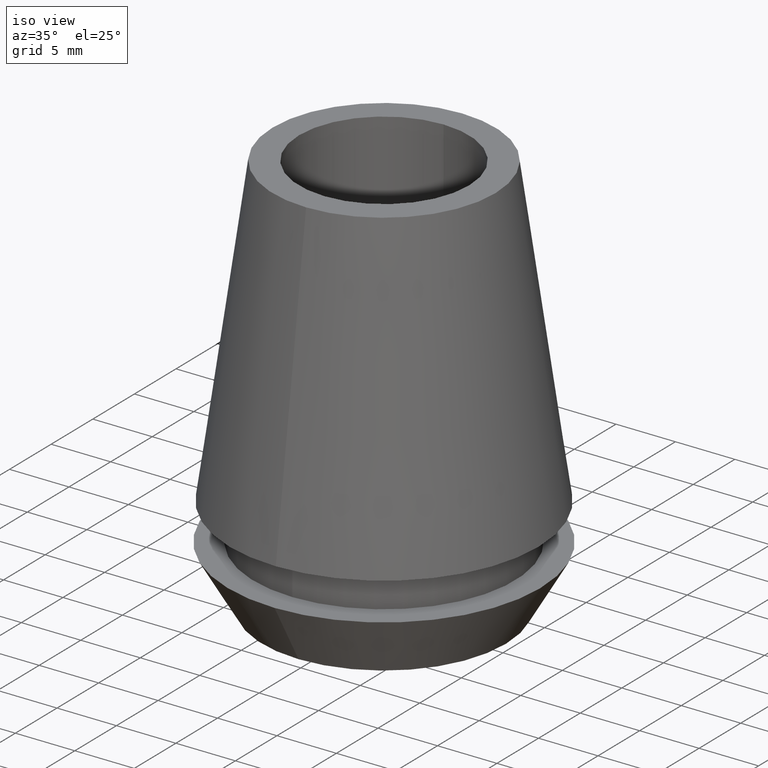
[diagram: clean part render]
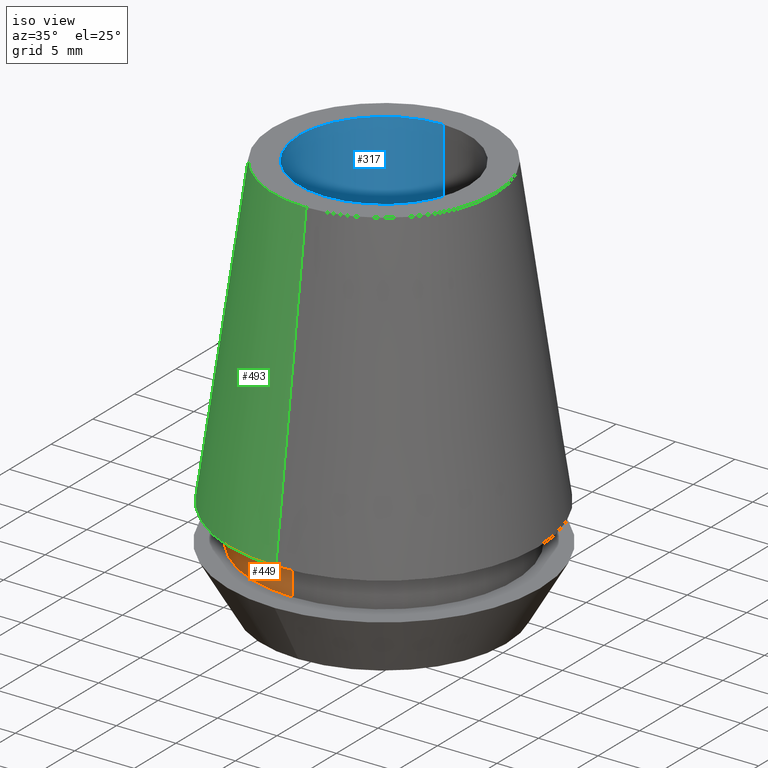
[diagram: same view with three faces highlighted in distinct colors, each labeled with its STEP entity id]
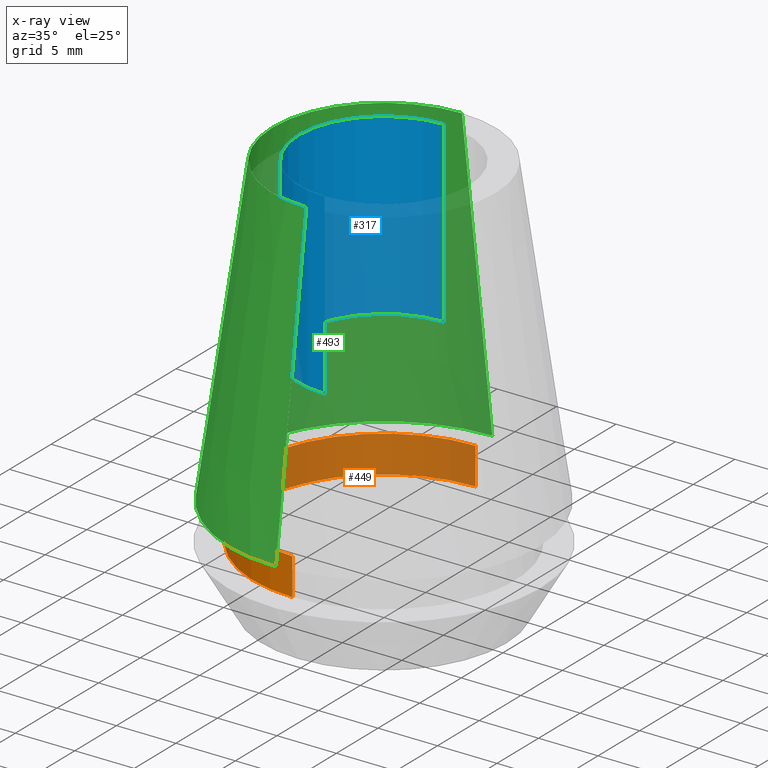
[diagram: x-ray of the same camera — body ghosted, the three highlighted faces saturated]
A machine part, iso view with three faces highlighted in distinct colors.
The next image is the same camera in x-ray (body ghosted, the three faces saturated) — at least one of them is partly hidden behind the body in this view.
Their STEP definitions:

[orange] entity #449 — the highlighted cylindrical surface (partial cylindrical patch) has radius 11 mm, axis along (0, 0, -1).
#148=CARTESIAN_POINT('',(0.E0,1.519051889662E-14,-2.9E1));
#149=DIRECTION('',(0.E0,0.E0,1.E0));
#150=DIRECTION('',(0.E0,1.E0,0.E0));
#151=AXIS2_PLACEMENT_3D('',#148,#149,#150);
#156=DIRECTION('',(0.E0,0.E0,-1.E0));
#157=VECTOR('',#156,3.1E0);
#158=CARTESIAN_POINT('',(0.E0,1.1E1,-2.59E1));
#159=LINE('',#158,#157);
#163=DIRECTION('',(0.E0,0.E0,-1.E0));
#164=VECTOR('',#163,3.1E0);
#165=CARTESIAN_POINT('',(0.E0,-1.1E1,-2.59E1));
#166=LINE('',#165,#164);
#186=CARTESIAN_POINT('',(0.E0,1.519051889662E-14,-2.59E1));
#187=DIRECTION('',(0.E0,0.E0,-1.E0));
#188=DIRECTION('',(0.E0,-1.E0,0.E0));
#189=AXIS2_PLACEMENT_3D('',#186,#187,#188);
#272=CARTESIAN_POINT('',(0.E0,-1.1E1,-2.9E1));
#273=CARTESIAN_POINT('',(0.E0,1.1E1,-2.9E1));
#274=VERTEX_POINT('',#272);
#275=VERTEX_POINT('',#273);
#276=CARTESIAN_POINT('',(0.E0,1.1E1,-2.59E1));
#277=VERTEX_POINT('',#276);
#278=CARTESIAN_POINT('',(0.E0,-1.1E1,-2.59E1));
#279=VERTEX_POINT('',#278);
#437=CARTESIAN_POINT('',(0.E0,1.519051889662E-14,1.7E0));
#438=DIRECTION('',(0.E0,0.E0,-1.E0));
#439=DIRECTION('',(0.E0,-1.E0,0.E0));
#440=AXIS2_PLACEMENT_3D('',#437,#438,#439);
#441=CYLINDRICAL_SURFACE('',#440,1.1E1);
#442=ORIENTED_EDGE('',*,*,#427,.F.);
#444=ORIENTED_EDGE('',*,*,#443,.F.);
#445=ORIENTED_EDGE('',*,*,#430,.T.);
#446=ORIENTED_EDGE('',*,*,#417,.F.);
#447=EDGE_LOOP('',(#442,#444,#445,#446));
#448=FACE_OUTER_BOUND('',#447,.F.);
#152=CIRCLE('',#151,1.1E1);
#190=CIRCLE('',#189,1.1E1);
#417=EDGE_CURVE('',#275,#274,#152,.T.);
#427=EDGE_CURVE('',#277,#275,#159,.T.);
#430=EDGE_CURVE('',#279,#274,#166,.T.);
#443=EDGE_CURVE('',#279,#277,#190,.T.);
#449=ADVANCED_FACE('',(#448),#441,.T.);

[blue] entity #317 — the highlighted cylindrical surface (partial cylindrical patch) has radius 7.15 mm, axis along (0, 0, -1).
#17=DIRECTION('',(0.E0,0.E0,1.E0));
#18=VECTOR('',#17,1.5E1);
#19=CARTESIAN_POINT('',(0.E0,7.15E0,-1.5E1));
#20=LINE('',#19,#18);
#25=DIRECTION('',(0.E0,0.E0,1.E0));
#26=VECTOR('',#25,1.5E1);
#27=CARTESIAN_POINT('',(0.E0,-7.15E0,-1.5E1));
#28=LINE('',#27,#26);
#32=CARTESIAN_POINT('',(0.E0,1.519051889662E-14,-1.5E1));
#33=DIRECTION('',(0.E0,0.E0,-1.E0));
#34=DIRECTION('',(0.E0,-1.E0,0.E0));
#35=AXIS2_PLACEMENT_3D('',#32,#33,#34);
#240=CARTESIAN_POINT('',(0.E0,1.519051889662E-14,0.E0));
#241=DIRECTION('',(0.E0,0.E0,1.E0));
#242=DIRECTION('',(0.E0,1.E0,0.E0));
#243=AXIS2_PLACEMENT_3D('',#240,#241,#242);
#248=CARTESIAN_POINT('',(0.E0,7.15E0,-1.5E1));
#249=CARTESIAN_POINT('',(0.E0,7.15E0,0.E0));
#250=VERTEX_POINT('',#248);
#251=VERTEX_POINT('',#249);
#252=CARTESIAN_POINT('',(0.E0,-7.15E0,0.E0));
#253=VERTEX_POINT('',#252);
#254=CARTESIAN_POINT('',(0.E0,-7.15E0,-1.5E1));
#255=VERTEX_POINT('',#254);
#304=CARTESIAN_POINT('',(0.E0,1.519051889662E-14,1.7E0));
#305=DIRECTION('',(0.E0,0.E0,-1.E0));
#306=DIRECTION('',(0.E0,-1.E0,0.E0));
#307=AXIS2_PLACEMENT_3D('',#304,#305,#306);
#308=CYLINDRICAL_SURFACE('',#307,7.15E0);
#309=ORIENTED_EDGE('',*,*,#293,.F.);
#311=ORIENTED_EDGE('',*,*,#310,.F.);
#312=ORIENTED_EDGE('',*,*,#297,.T.);
#314=ORIENTED_EDGE('',*,*,#313,.F.);
#315=EDGE_LOOP('',(#309,#311,#312,#314));
#316=FACE_OUTER_BOUND('',#315,.F.);
#36=CIRCLE('',#35,7.15E0);
#244=CIRCLE('',#243,7.15E0);
#293=EDGE_CURVE('',#250,#251,#20,.T.);
#297=EDGE_CURVE('',#255,#253,#28,.T.);
#310=EDGE_CURVE('',#255,#250,#36,.T.);
#313=EDGE_CURVE('',#251,#253,#244,.T.);
#317=ADVANCED_FACE('',(#316),#308,.F.);

[green] entity #493 — the highlighted conical surface has half-angle 8 deg.
#178=CARTESIAN_POINT('',(0.E0,1.339641133587E-14,-2.59E1));
#179=DIRECTION('',(0.E0,0.E0,1.E0));
#180=DIRECTION('',(0.E0,1.E0,0.E0));
#181=AXIS2_PLACEMENT_3D('',#178,#179,#180);
#202=DIRECTION('',(0.E0,1.391731009601E-1,-9.902680687416E-1));
#203=VECTOR('',#202,2.615453412823E1);
#204=CARTESIAN_POINT('',(0.E0,9.360317752746E0,-4.736951571734E-13));
#205=LINE('',#204,#203);
#209=DIRECTION('',(0.E0,-1.391731009601E-1,-9.902680687416E-1));
#210=VECTOR('',#209,2.615453412823E1);
#211=CARTESIAN_POINT('',(0.E0,-9.360317752746E0,-4.736951571734E-13));
#212=LINE('',#211,#210);
#216=CARTESIAN_POINT('',(0.E0,1.339641133587E-14,-7.105427357601E-13));
#217=DIRECTION('',(0.E0,0.E0,-1.E0));
#218=DIRECTION('',(0.E0,-1.E0,0.E0));
#219=AXIS2_PLACEMENT_3D('',#216,#217,#218);
#280=CARTESIAN_POINT('',(0.E0,-1.300032537154E1,-2.59E1));
#281=CARTESIAN_POINT('',(0.E0,1.300032537154E1,-2.59E1));
#282=VERTEX_POINT('',#280);
#283=VERTEX_POINT('',#281);
#284=CARTESIAN_POINT('',(0.E0,9.360317752746E0,-4.736951571734E-13));
#285=VERTEX_POINT('',#284);
#286=CARTESIAN_POINT('',(0.E0,-9.360317752746E0,-4.736951571734E-13));
#287=VERTEX_POINT('',#286);
#481=CARTESIAN_POINT('',(0.E0,1.339641133587E-14,-1.295E1));
#482=DIRECTION('',(0.E0,0.E0,-1.E0));
#483=DIRECTION('',(0.E0,-1.E0,0.E0));
#484=AXIS2_PLACEMENT_3D('',#481,#482,#483);
#485=CONICAL_SURFACE('',#484,1.118032156214E1,8.E0);
#486=ORIENTED_EDGE('',*,*,#471,.F.);
#488=ORIENTED_EDGE('',*,*,#487,.F.);
#489=ORIENTED_EDGE('',*,*,#474,.T.);
#490=ORIENTED_EDGE('',*,*,#457,.F.);
#491=EDGE_LOOP('',(#486,#488,#489,#490));
#492=FACE_OUTER_BOUND('',#491,.F.);
#182=CIRCLE('',#181,1.300032537154E1);
#220=CIRCLE('',#219,9.360317752744E0);
#457=EDGE_CURVE('',#283,#282,#182,.T.);
#471=EDGE_CURVE('',#285,#283,#205,.T.);
#474=EDGE_CURVE('',#287,#282,#212,.T.);
#487=EDGE_CURVE('',#287,#285,#220,.T.);
#493=ADVANCED_FACE('',(#492),#485,.T.);